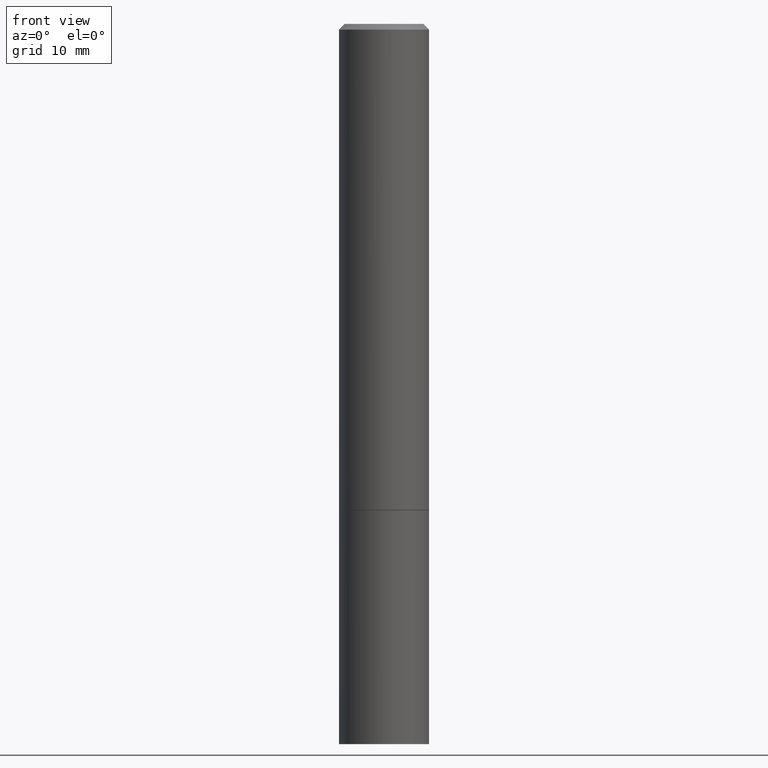
[diagram: clean part render]
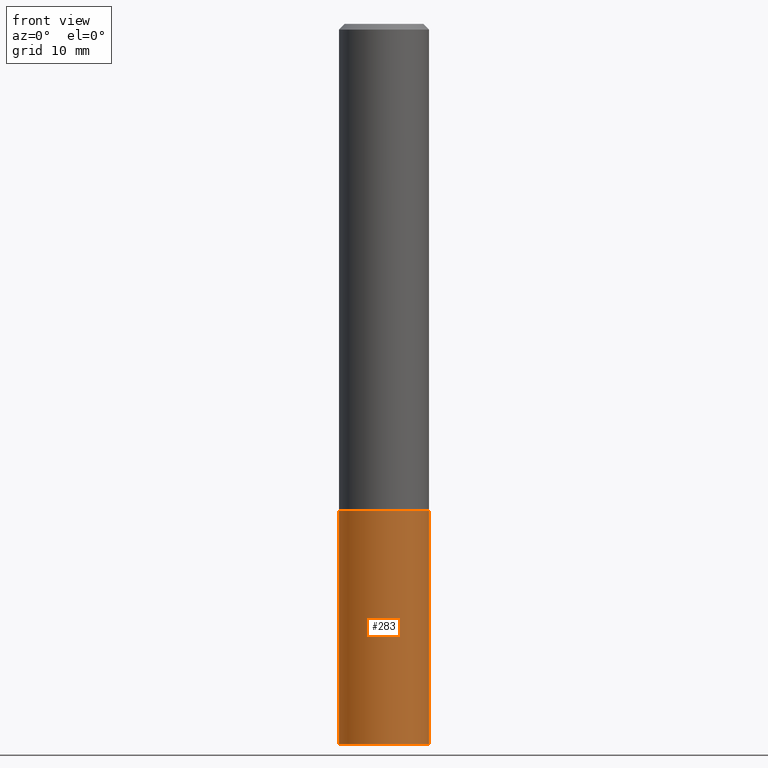
[diagram: same view with one face highlighted and labeled with its STEP entity id]
A machine part, front view. The second image highlights one B-rep face of the part: STEP entity #283.
In plain terms, the highlighted cylindrical surface (partial cylindrical patch) has radius 3.9688 mm, axis along (-0, 0, 1).
Its self-contained STEP definition (entity closure, byte-faithful):
#22 = CIRCLE ( 'NONE', #141, 0.1562500000000000000 ) ;
#39 = EDGE_CURVE ( 'NONE', #291, #206, #155, .T. ) ;
#46 = EDGE_CURVE ( 'NONE', #83, #206, #274, .T. ) ;
#65 = DIRECTION ( 'NONE',  ( 1.000000000000000000, -6.982962677686269077E-15, 0.000000000000000000 ) ) ;
#73 = EDGE_CURVE ( 'NONE', #321, #291, #22, .T. ) ;
#83 = VERTEX_POINT ( 'NONE', #185 ) ;
#84 = FACE_OUTER_BOUND ( 'NONE', #92, .T. ) ;
#88 = DIRECTION ( 'NONE',  ( 1.000000000000000000, -6.982962677686266711E-15, 4.876176775795936353E-29 ) ) ;
#92 = EDGE_LOOP ( 'NONE', ( #270, #199, #239, #212 ) ) ;
#93 = DIRECTION ( 'NONE',  ( 1.000000000000000000, -6.982962677686269077E-15, 0.000000000000000000 ) ) ;
#98 = DIRECTION ( 'NONE',  ( -2.445468806185136597E-29, 3.491481338843145583E-15, 1.000000000000000000 ) ) ;
#100 = AXIS2_PLACEMENT_3D ( 'NONE', #204, #230, #88 ) ;
#135 = VECTOR ( 'NONE', #201, 39.37007874015748143 ) ;
#141 = AXIS2_PLACEMENT_3D ( 'NONE', #246, #299, #93 ) ;
#147 = CARTESIAN_POINT ( 'NONE',  ( -0.1562500000000000000, 1.110223024625156540E-15, -7.685836078523291160E-30 ) ) ;
#155 = LINE ( 'NONE', #184, #195 ) ;
#173 = CARTESIAN_POINT ( 'NONE',  ( 0.1562500000000000000, -9.819791265496344905E-15, -2.500000000000000000 ) ) ;
#178 = AXIS2_PLACEMENT_3D ( 'NONE', #244, #98, #65 ) ;
#184 = CARTESIAN_POINT ( 'NONE',  ( 0.1562500000000000000, -1.091087918388479174E-15, 7.619026212181150377E-30 ) ) ;
#185 = CARTESIAN_POINT ( 'NONE',  ( -0.1562500000000000000, -6.200938898912389918E-15, -1.688000000000000167 ) ) ;
#195 = VECTOR ( 'NONE', #319, 39.37007874015748143 ) ;
#199 = ORIENTED_EDGE ( 'NONE', *, *, #73, .T. ) ;
#200 = CYLINDRICAL_SURFACE ( 'NONE', #100, 0.1562500000000000000 ) ;
#201 = DIRECTION ( 'NONE',  ( -2.445468806185136877E-29, 3.491481338843145188E-15, 1.000000000000000000 ) ) ;
#204 = CARTESIAN_POINT ( 'NONE',  ( 0.000000000000000000, 0.000000000000000000, 0.000000000000000000 ) ) ;
#206 = VERTEX_POINT ( 'NONE', #308 ) ;
#212 = ORIENTED_EDGE ( 'NONE', *, *, #46, .F. ) ;
#230 = DIRECTION ( 'NONE',  ( -2.445468806185136597E-29, 3.491481338843145583E-15, 1.000000000000000000 ) ) ;
#239 = ORIENTED_EDGE ( 'NONE', *, *, #39, .T. ) ;
#244 = CARTESIAN_POINT ( 'NONE',  ( 4.127951344840510809E-29, -5.893620499967230340E-15, -1.688000000000000167 ) ) ;
#246 = CARTESIAN_POINT ( 'NONE',  ( 6.113672015462842613E-29, -8.728703347107864943E-15, -2.500000000000000000 ) ) ;
#270 = ORIENTED_EDGE ( 'NONE', *, *, #306, .F. ) ;
#274 = CIRCLE ( 'NONE', #178, 0.1562500000000000000 ) ;
#283 = ADVANCED_FACE ( 'NONE', ( #84 ), #200, .T. ) ;
#291 = VERTEX_POINT ( 'NONE', #173 ) ;
#299 = DIRECTION ( 'NONE',  ( -2.445468806185136597E-29, 3.491481338843145583E-15, 1.000000000000000000 ) ) ;
#306 = EDGE_CURVE ( 'NONE', #321, #83, #339, .T. ) ;
#308 = CARTESIAN_POINT ( 'NONE',  ( 0.1562500000000000000, -6.984708418355709513E-15, -1.688000000000000167 ) ) ;
#317 = CARTESIAN_POINT ( 'NONE',  ( -0.1562500000000000000, -6.200938898912389918E-15, -2.500000000000000000 ) ) ;
#319 = DIRECTION ( 'NONE',  ( -2.445468806185136877E-29, 3.491481338843145188E-15, 1.000000000000000000 ) ) ;
#321 = VERTEX_POINT ( 'NONE', #317 ) ;
#339 = LINE ( 'NONE', #147, #135 ) ;